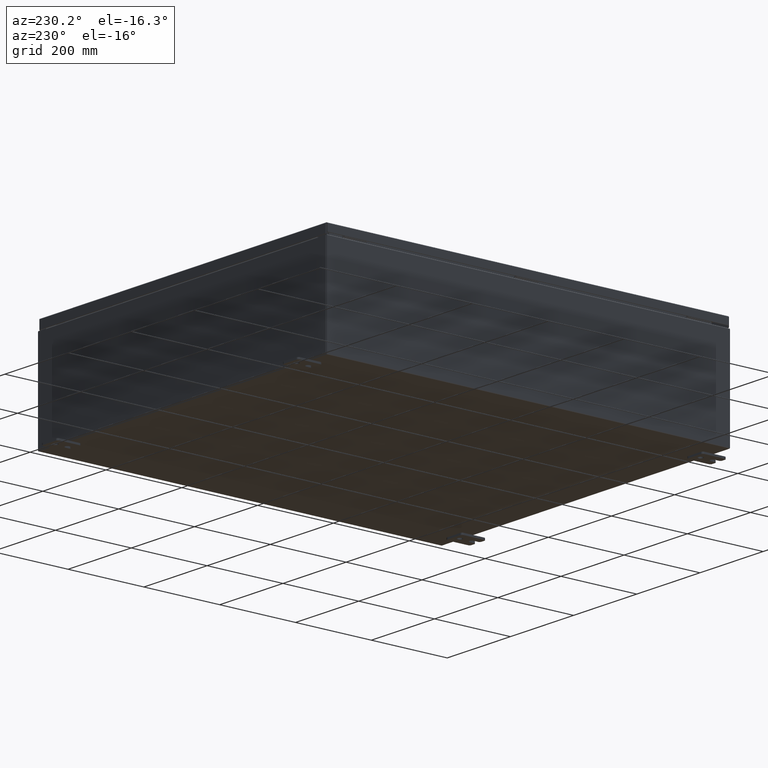
[diagram: clean part render]
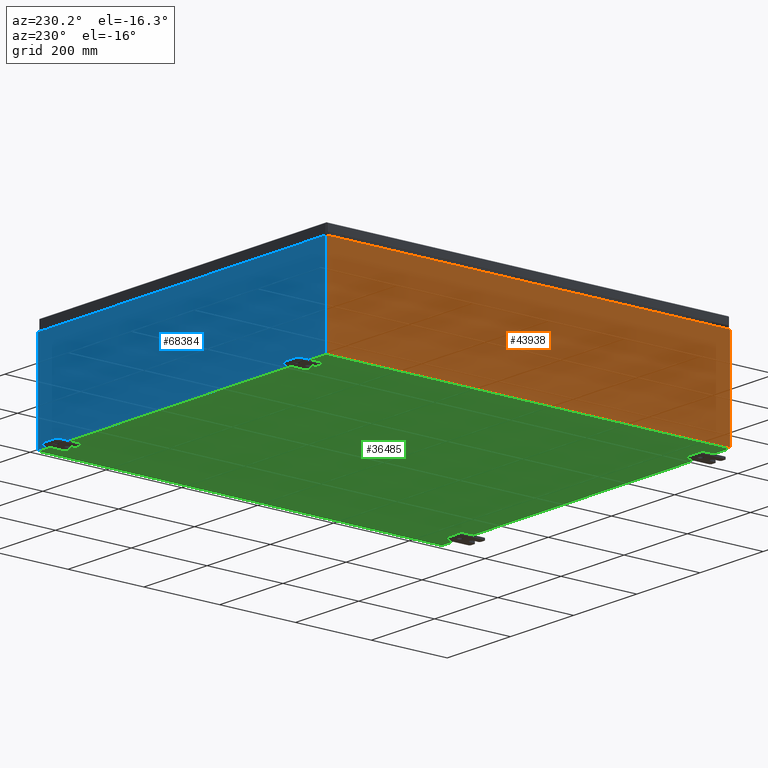
[diagram: same view with three faces highlighted in distinct colors, each labeled with its STEP entity id]
A machine part, auxiliary view with three faces highlighted in distinct colors.
Their STEP definitions:

[orange] entity #43938 — the highlighted planar face has unit normal (1, 0, 0).
#487 = ORIENTED_EDGE ( 'NONE', *, *, #7091, .T. ) ;
#2911 = EDGE_CURVE ( 'NONE', #21562, #26520, #35580, .T. ) ;
#6128 = DIRECTION ( 'NONE',  ( 0.0000000000000000000, 1.000000000000000000, 0.0000000000000000000 ) ) ;
#7091 = EDGE_CURVE ( 'NONE', #33830, #27212, #43182, .T. ) ;
#10897 = CARTESIAN_POINT ( 'NONE',  ( -17.99999999999999600, -20.92530000000000400, -6.367630515150755500E-014 ) ) ;
#12906 = PLANE ( 'NONE',  #37472 ) ;
#12997 = ORIENTED_EDGE ( 'NONE', *, *, #49235, .T. ) ;
#13277 = VECTOR ( 'NONE', #42693, 39.37007874015748100 ) ;
#17926 = CARTESIAN_POINT ( 'NONE',  ( -17.99999999999999600, 20.92529999999999600, 0.01299999999999984700 ) ) ;
#21562 = VERTEX_POINT ( 'NONE', #67254 ) ;
#23561 = CARTESIAN_POINT ( 'NONE',  ( -17.99999999999999600, 0.0000000000000000000, -6.367630515150755500E-014 ) ) ;
#23588 = FACE_OUTER_BOUND ( 'NONE', #57703, .T. ) ;
#26520 = VERTEX_POINT ( 'NONE', #37913 ) ;
#26538 = LINE ( 'NONE', #43260, #54777 ) ;
#26660 = EDGE_CURVE ( 'NONE', #33830, #26520, #66964, .T. ) ;
#27212 = VERTEX_POINT ( 'NONE', #54291 ) ;
#28924 = DIRECTION ( 'NONE',  ( 3.523082860860887800E-015, 0.0000000000000000000, -1.000000000000000000 ) ) ;
#33254 = CARTESIAN_POINT ( 'NONE',  ( -17.99999999999999600, 20.92529999999999600, -6.367630515150755500E-014 ) ) ;
#33830 = VERTEX_POINT ( 'NONE', #56859 ) ;
#35580 = LINE ( 'NONE', #33254, #49690 ) ;
#37472 = AXIS2_PLACEMENT_3D ( 'NONE', #23561, #60722, #28924 ) ;
#37913 = CARTESIAN_POINT ( 'NONE',  ( -17.99999999999999600, 20.92529999999999600, 0.01299999999999984300 ) ) ;
#38749 = VECTOR ( 'NONE', #44411, 39.37007874015748100 ) ;
#42693 = DIRECTION ( 'NONE',  ( -3.523082860860888200E-015, 0.0000000000000000000, 1.000000000000000000 ) ) ;
#43182 = LINE ( 'NONE', #10897, #13277 ) ;
#43260 = CARTESIAN_POINT ( 'NONE',  ( -18.00000000000003200, -20.92529999999999600, 9.837599999999998300 ) ) ;
#43938 = ADVANCED_FACE ( 'NONE', ( #23588 ), #12906, .F. ) ;
#44411 = DIRECTION ( 'NONE',  ( -0.0000000000000000000, 1.000000000000000000, -0.0000000000000000000 ) ) ;
#49235 = EDGE_CURVE ( 'NONE', #27212, #21562, #26538, .T. ) ;
#49690 = VECTOR ( 'NONE', #54582, 39.37007874015748100 ) ;
#53759 = ORIENTED_EDGE ( 'NONE', *, *, #2911, .T. ) ;
#54291 = CARTESIAN_POINT ( 'NONE',  ( -18.00000000000003200, -20.92529999999999300, 9.837599999999998300 ) ) ;
#54582 = DIRECTION ( 'NONE',  ( 3.523082860860888200E-015, 0.0000000000000000000, -1.000000000000000000 ) ) ;
#54777 = VECTOR ( 'NONE', #6128, 39.37007874015748100 ) ;
#56859 = CARTESIAN_POINT ( 'NONE',  ( -17.99999999999999600, -20.92529999999999300, 0.01299999999999984700 ) ) ;
#57703 = EDGE_LOOP ( 'NONE', ( #12997, #53759, #61482, #487 ) ) ;
#60722 = DIRECTION ( 'NONE',  ( 1.000000000000000000, 0.0000000000000000000, 3.523082860860887800E-015 ) ) ;
#61482 = ORIENTED_EDGE ( 'NONE', *, *, #26660, .F. ) ;
#66964 = LINE ( 'NONE', #17926, #38749 ) ;
#67254 = CARTESIAN_POINT ( 'NONE',  ( -18.00000000000003200, 20.92529999999999600, 9.837599999999998300 ) ) ;

[blue] entity #68384 — the highlighted planar face has unit normal (0, -1, 0).
#933 = LINE ( 'NONE', #62130, #55710 ) ;
#1373 = VERTEX_POINT ( 'NONE', #57326 ) ;
#1482 = LINE ( 'NONE', #12936, #43849 ) ;
#3159 = AXIS2_PLACEMENT_3D ( 'NONE', #9114, #46225, #14433 ) ;
#5053 = EDGE_CURVE ( 'NONE', #12933, #19691, #933, .T. ) ;
#5148 = ORIENTED_EDGE ( 'NONE', *, *, #62007, .T. ) ;
#5306 = CARTESIAN_POINT ( 'NONE',  ( -16.88720000000000000, -0.0000000000000000000, 0.0000000000000000000 ) ) ;
#5617 = DIRECTION ( 'NONE',  ( 1.000000000000000000, 0.0000000000000000000, 0.0000000000000000000 ) ) ;
#7554 = CARTESIAN_POINT ( 'NONE',  ( 16.92455000000000000, 0.0000000000000000000, 4.925300000000000000 ) ) ;
#7623 = DIRECTION ( 'NONE',  ( 1.000000000000000000, 0.0000000000000000000, 0.0000000000000000000 ) ) ;
#7773 = VERTEX_POINT ( 'NONE', #16934 ) ;
#8026 = CARTESIAN_POINT ( 'NONE',  ( 17.92530000000000000, 0.0000000000000000000, -4.925300000000000000 ) ) ;
#8758 = EDGE_CURVE ( 'NONE', #67124, #31541, #60471, .T. ) ;
#9114 = CARTESIAN_POINT ( 'NONE',  ( 16.90587500000000200, 0.0000000000000000000, 4.874950000000000100 ) ) ;
#9216 = EDGE_CURVE ( 'NONE', #14167, #38320, #1482, .T. ) ;
#9526 = VECTOR ( 'NONE', #56721, 39.37007874015748100 ) ;
#9907 = VERTEX_POINT ( 'NONE', #8026 ) ;
#10866 = CARTESIAN_POINT ( 'NONE',  ( -16.90587499999999800, 0.0000000000000000000, 4.874950000000000100 ) ) ;
#11714 = CARTESIAN_POINT ( 'NONE',  ( -17.92530000000000000, 0.0000000000000000000, 4.925300000000000000 ) ) ;
#12933 = VERTEX_POINT ( 'NONE', #15214 ) ;
#12936 = CARTESIAN_POINT ( 'NONE',  ( -16.88720000000000000, -7.171100983368691200E-016, 4.912300000000000100 ) ) ;
#13305 = DIRECTION ( 'NONE',  ( 0.0000000000000000000, -1.000000000000000000, 0.0000000000000000000 ) ) ;
#13719 = ORIENTED_EDGE ( 'NONE', *, *, #55527, .F. ) ;
#14167 = VERTEX_POINT ( 'NONE', #55681 ) ;
#14433 = DIRECTION ( 'NONE',  ( 0.0000000000000000000, 0.0000000000000000000, -1.000000000000000000 ) ) ;
#14789 = CARTESIAN_POINT ( 'NONE',  ( 16.92454999999957700, -0.0000000000000000000, -1.469244821010341400E-012 ) ) ;
#15175 = CARTESIAN_POINT ( 'NONE',  ( -17.92530000000000000, 0.0000000000000000000, 4.925300000000000000 ) ) ;
#15214 = CARTESIAN_POINT ( 'NONE',  ( -17.92530000000000000, 0.0000000000000000000, -4.925300000000000000 ) ) ;
#16186 = DIRECTION ( 'NONE',  ( 0.0000000000000000000, 0.0000000000000000000, -1.000000000000000000 ) ) ;
#16934 = CARTESIAN_POINT ( 'NONE',  ( 17.92530000000000000, 0.0000000000000000000, 4.925300000000000000 ) ) ;
#17788 = FACE_OUTER_BOUND ( 'NONE', #41162, .T. ) ;
#17924 = EDGE_CURVE ( 'NONE', #36012, #1373, #57465, .T. ) ;
#18558 = VECTOR ( 'NONE', #5617, 39.37007874015748100 ) ;
#19602 = CARTESIAN_POINT ( 'NONE',  ( 17.92530000000000000, 0.0000000000000000000, 4.925300000000000000 ) ) ;
#19691 = VERTEX_POINT ( 'NONE', #11714 ) ;
#19862 = ORIENTED_EDGE ( 'NONE', *, *, #9216, .T. ) ;
#20206 = ORIENTED_EDGE ( 'NONE', *, *, #8758, .F. ) ;
#20351 = CARTESIAN_POINT ( 'NONE',  ( 16.88720000000000000, 0.0000000000000000000, 0.0000000000000000000 ) ) ;
#20412 = ORIENTED_EDGE ( 'NONE', *, *, #67828, .T. ) ;
#20531 = ORIENTED_EDGE ( 'NONE', *, *, #5053, .T. ) ;
#21040 = DIRECTION ( 'NONE',  ( 0.0000000000000000000, 0.0000000000000000000, -1.000000000000000000 ) ) ;
#23219 = ORIENTED_EDGE ( 'NONE', *, *, #61452, .T. ) ;
#25003 = DIRECTION ( 'NONE',  ( -0.0000000000000000000, -0.0000000000000000000, 1.000000000000000000 ) ) ;
#25567 = AXIS2_PLACEMENT_3D ( 'NONE', #10866, #47970, #16186 ) ;
#26569 = LINE ( 'NONE', #29453, #53110 ) ;
#27733 = CARTESIAN_POINT ( 'NONE',  ( 16.88720000000000000, 0.0000000000000000000, 4.912300000000000100 ) ) ;
#28671 = LINE ( 'NONE', #19602, #9526 ) ;
#29453 = CARTESIAN_POINT ( 'NONE',  ( -17.92530000000000000, 0.0000000000000000000, -4.925300000000000000 ) ) ;
#30173 = EDGE_CURVE ( 'NONE', #19691, #31541, #62553, .T. ) ;
#30825 = DIRECTION ( 'NONE',  ( -8.681145560800009800E-014, 0.0000000000000000000, -1.000000000000000000 ) ) ;
#30943 = LINE ( 'NONE', #5306, #57481 ) ;
#31541 = VERTEX_POINT ( 'NONE', #35777 ) ;
#31784 = EDGE_CURVE ( 'NONE', #14167, #42597, #30943, .T. ) ;
#32388 = CIRCLE ( 'NONE', #25567, 0.01867499999999949400 ) ;
#34396 = PLANE ( 'NONE',  #50277 ) ;
#34789 = DIRECTION ( 'NONE',  ( -1.000000000000000000, -0.0000000000000000000, -0.0000000000000000000 ) ) ;
#35777 = CARTESIAN_POINT ( 'NONE',  ( -16.92454999999999600, 0.0000000000000000000, 4.925300000000000000 ) ) ;
#36012 = VERTEX_POINT ( 'NONE', #7554 ) ;
#37375 = CARTESIAN_POINT ( 'NONE',  ( -17.92530000000000000, 0.0000000000000000000, 4.925300000000000000 ) ) ;
#38320 = VERTEX_POINT ( 'NONE', #27733 ) ;
#39942 = DIRECTION ( 'NONE',  ( 0.0000000000000000000, 0.0000000000000000000, 1.000000000000000000 ) ) ;
#40357 = VECTOR ( 'NONE', #57477, 39.37007874015748100 ) ;
#40517 = EDGE_CURVE ( 'NONE', #1373, #62082, #64450, .T. ) ;
#41025 = ORIENTED_EDGE ( 'NONE', *, *, #62210, .F. ) ;
#41162 = EDGE_LOOP ( 'NONE', ( #20206, #41025, #60435, #19862, #13719, #57321, #50522, #23219, #20412, #5148, #20531, #64103 ) ) ;
#41690 = CARTESIAN_POINT ( 'NONE',  ( -16.92454999999999600, 0.0000000000000000000, 4.874950000000000100 ) ) ;
#42597 = VERTEX_POINT ( 'NONE', #64359 ) ;
#43397 = VECTOR ( 'NONE', #30825, 39.37007874015748100 ) ;
#43849 = VECTOR ( 'NONE', #7623, 39.37007874015748100 ) ;
#44906 = LINE ( 'NONE', #15175, #63995 ) ;
#45086 = CARTESIAN_POINT ( 'NONE',  ( 0.0000000000000000000, 0.0000000000000000000, 0.0000000000000000000 ) ) ;
#46225 = DIRECTION ( 'NONE',  ( -0.0000000000000000000, 1.000000000000000000, -0.0000000000000000000 ) ) ;
#46953 = DIRECTION ( 'NONE',  ( 1.000000000000000000, 0.0000000000000000000, 0.0000000000000000000 ) ) ;
#47970 = DIRECTION ( 'NONE',  ( -0.0000000000000000000, 1.000000000000000000, -0.0000000000000000000 ) ) ;
#50277 = AXIS2_PLACEMENT_3D ( 'NONE', #45086, #13305, #50391 ) ;
#50391 = DIRECTION ( 'NONE',  ( 0.0000000000000000000, -0.0000000000000000000, -1.000000000000000000 ) ) ;
#50522 = ORIENTED_EDGE ( 'NONE', *, *, #17924, .F. ) ;
#51111 = LINE ( 'NONE', #20351, #40357 ) ;
#53110 = VECTOR ( 'NONE', #34789, 39.37007874015748100 ) ;
#55527 = EDGE_CURVE ( 'NONE', #62082, #38320, #51111, .T. ) ;
#55681 = CARTESIAN_POINT ( 'NONE',  ( -16.88720000000000000, -7.171100983368691200E-016, 4.912300000000000100 ) ) ;
#55688 = CARTESIAN_POINT ( 'NONE',  ( -16.92454999999999600, -0.0000000000000000000, 0.0000000000000000000 ) ) ;
#55710 = VECTOR ( 'NONE', #25003, 39.37007874015748100 ) ;
#56721 = DIRECTION ( 'NONE',  ( 0.0000000000000000000, 0.0000000000000000000, -1.000000000000000000 ) ) ;
#57119 = VECTOR ( 'NONE', #39942, 39.37007874015748100 ) ;
#57321 = ORIENTED_EDGE ( 'NONE', *, *, #40517, .F. ) ;
#57326 = CARTESIAN_POINT ( 'NONE',  ( 16.92455000000000000, 0.0000000000000000000, 4.874950000000000100 ) ) ;
#57465 = LINE ( 'NONE', #14789, #43397 ) ;
#57477 = DIRECTION ( 'NONE',  ( 0.0000000000000000000, 0.0000000000000000000, 1.000000000000000000 ) ) ;
#57481 = VECTOR ( 'NONE', #21040, 39.37007874015748100 ) ;
#60435 = ORIENTED_EDGE ( 'NONE', *, *, #31784, .F. ) ;
#60471 = LINE ( 'NONE', #55688, #57119 ) ;
#61452 = EDGE_CURVE ( 'NONE', #36012, #7773, #44906, .T. ) ;
#62007 = EDGE_CURVE ( 'NONE', #9907, #12933, #26569, .T. ) ;
#62082 = VERTEX_POINT ( 'NONE', #62842 ) ;
#62130 = CARTESIAN_POINT ( 'NONE',  ( -17.92530000000000000, 0.0000000000000000000, 4.925300000000000000 ) ) ;
#62210 = EDGE_CURVE ( 'NONE', #42597, #67124, #32388, .T. ) ;
#62553 = LINE ( 'NONE', #37375, #18558 ) ;
#62842 = CARTESIAN_POINT ( 'NONE',  ( 16.88720000000000000, 0.0000000000000000000, 4.874950000000000100 ) ) ;
#63995 = VECTOR ( 'NONE', #46953, 39.37007874015748100 ) ;
#64103 = ORIENTED_EDGE ( 'NONE', *, *, #30173, .T. ) ;
#64359 = CARTESIAN_POINT ( 'NONE',  ( -16.88720000000000000, -0.0000000000000000000, 4.874950000000000100 ) ) ;
#64450 = CIRCLE ( 'NONE', #3159, 0.01867499999999949400 ) ;
#67124 = VERTEX_POINT ( 'NONE', #41690 ) ;
#67828 = EDGE_CURVE ( 'NONE', #7773, #9907, #28671, .T. ) ;
#68384 = ADVANCED_FACE ( 'NONE', ( #17788 ), #34396, .F. ) ;

[green] entity #36485 — the highlighted planar face has unit normal (0, 0, -1).
#479 = DIRECTION ( 'NONE',  ( 0.0000000000000000000, 0.0000000000000000000, -1.000000000000000000 ) ) ;
#2159 = VERTEX_POINT ( 'NONE', #56084 ) ;
#4855 = FACE_OUTER_BOUND ( 'NONE', #35226, .T. ) ;
#5923 = VECTOR ( 'NONE', #28418, 39.37007874015748100 ) ;
#6204 = EDGE_CURVE ( 'NONE', #2159, #64560, #39908, .T. ) ;
#6552 = CARTESIAN_POINT ( 'NONE',  ( -17.91229999999999800, 20.92529999999999600, -0.07470000000000000300 ) ) ;
#8569 = VECTOR ( 'NONE', #57854, 39.37007874015748100 ) ;
#9971 = VECTOR ( 'NONE', #39739, 39.37007874015748100 ) ;
#13690 = VERTEX_POINT ( 'NONE', #43545 ) ;
#16233 = EDGE_CURVE ( 'NONE', #13690, #64560, #50878, .T. ) ;
#18072 = EDGE_CURVE ( 'NONE', #2159, #63029, #54148, .T. ) ;
#21029 = DIRECTION ( 'NONE',  ( -1.000000000000000000, -0.0000000000000000000, -0.0000000000000000000 ) ) ;
#23045 = CARTESIAN_POINT ( 'NONE',  ( -17.91229999999999800, -20.92529999999999600, -0.07469999999999994700 ) ) ;
#23586 = ORIENTED_EDGE ( 'NONE', *, *, #18072, .F. ) ;
#26540 = ORIENTED_EDGE ( 'NONE', *, *, #33544, .T. ) ;
#26962 = PLANE ( 'NONE',  #63835 ) ;
#28418 = DIRECTION ( 'NONE',  ( -0.0000000000000000000, 1.000000000000000000, -0.0000000000000000000 ) ) ;
#33544 = EDGE_CURVE ( 'NONE', #13690, #63029, #48229, .T. ) ;
#35226 = EDGE_LOOP ( 'NONE', ( #37465, #26540, #23586, #64338 ) ) ;
#36485 = ADVANCED_FACE ( 'NONE', ( #4855 ), #26962, .T. ) ;
#37465 = ORIENTED_EDGE ( 'NONE', *, *, #16233, .F. ) ;
#37630 = DIRECTION ( 'NONE',  ( -1.000000000000000000, 0.0000000000000000000, -0.0000000000000000000 ) ) ;
#38396 = VECTOR ( 'NONE', #21029, 39.37007874015748100 ) ;
#39739 = DIRECTION ( 'NONE',  ( -0.0000000000000000000, -1.000000000000000000, -0.0000000000000000000 ) ) ;
#39908 = LINE ( 'NONE', #66177, #9971 ) ;
#40721 = CARTESIAN_POINT ( 'NONE',  ( 17.91230000000000200, -20.92530000000000700, -0.07470000000000000300 ) ) ;
#41862 = CARTESIAN_POINT ( 'NONE',  ( -17.99999999999999600, -20.92530000000000400, -0.07470000000000000300 ) ) ;
#43545 = CARTESIAN_POINT ( 'NONE',  ( -17.91229999999999800, -20.92529999999999300, -0.07469999999999994700 ) ) ;
#48229 = LINE ( 'NONE', #23045, #5923 ) ;
#50878 = LINE ( 'NONE', #41862, #8569 ) ;
#54148 = LINE ( 'NONE', #57935, #38396 ) ;
#56084 = CARTESIAN_POINT ( 'NONE',  ( 17.91230000000000200, 20.92529999999998600, -0.07469999999999994700 ) ) ;
#57854 = DIRECTION ( 'NONE',  ( 1.000000000000000000, -1.214154663850783700E-016, 0.0000000000000000000 ) ) ;
#57935 = CARTESIAN_POINT ( 'NONE',  ( -17.99999999999999600, 20.92529999999999600, -0.07470000000000000300 ) ) ;
#63029 = VERTEX_POINT ( 'NONE', #6552 ) ;
#63835 = AXIS2_PLACEMENT_3D ( 'NONE', #64095, #479, #37630 ) ;
#64095 = CARTESIAN_POINT ( 'NONE',  ( 0.0000000000000000000, 0.0000000000000000000, -0.07470000000000000300 ) ) ;
#64338 = ORIENTED_EDGE ( 'NONE', *, *, #6204, .T. ) ;
#64560 = VERTEX_POINT ( 'NONE', #40721 ) ;
#66177 = CARTESIAN_POINT ( 'NONE',  ( 17.91230000000000200, 20.92529999999998900, -0.07469999999999994700 ) ) ;